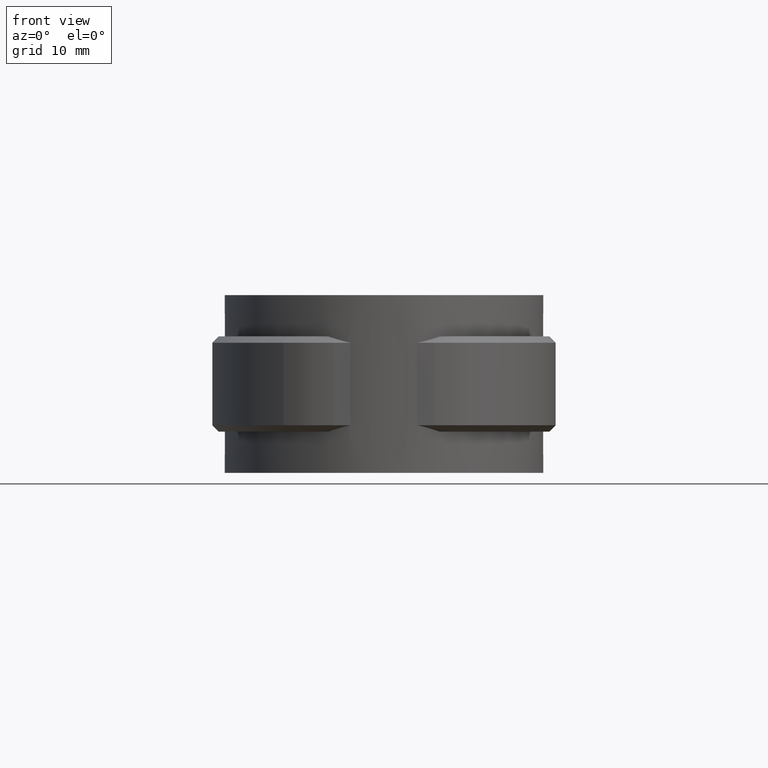
[diagram: clean part render]
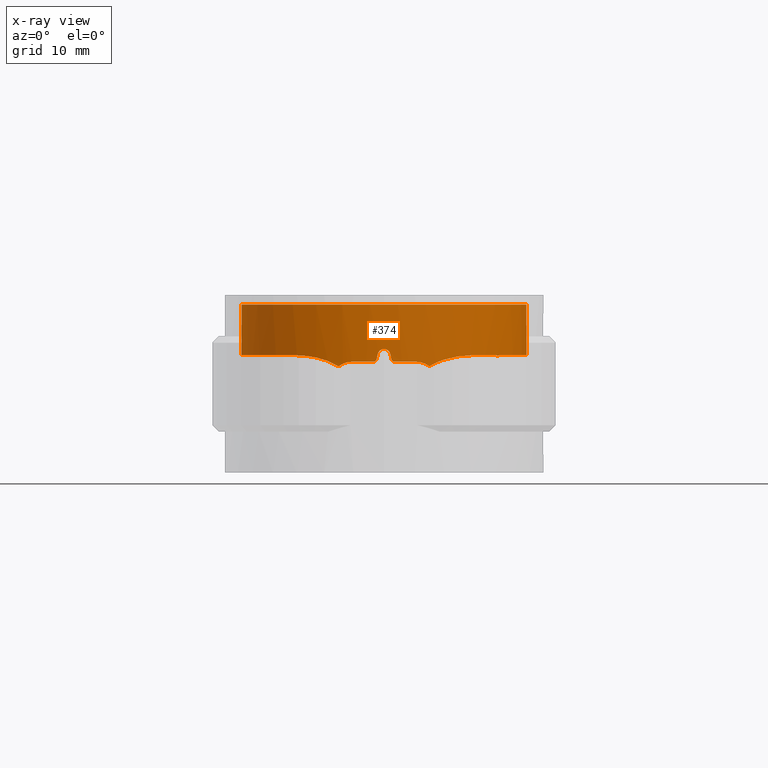
[diagram: x-ray — body ghosted, one internal face saturated and labeled with its STEP entity id]
A machine part, front view, then the same camera in x-ray: the body is ghosted and one INTERNAL B-rep face — a face not visible from any outside direction — is saturated and labeled: STEP entity #374.
In plain terms, the highlighted cylindrical surface (partial cylindrical patch) has radius 22.5 mm, axis along (0, 0, 1).
Its self-contained STEP definition (entity closure, byte-faithful):
#374 = ADVANCED_FACE( '', ( #730 ), #731, .F. );
#730 = FACE_OUTER_BOUND( '', #1662, .T. );
#731 = CYLINDRICAL_SURFACE( '', #1663, 22.5000000000000 );
#1662 = EDGE_LOOP( '', ( #3152, #3153, #3154, #3155, #3156, #3157, #3158, #3159, #3160, #3161, #3162, #3163, #3164, #3165, #3166, #3167 ) );
#1663 = AXIS2_PLACEMENT_3D( '', #3168, #3169, #3170 );
#3152 = ORIENTED_EDGE( '', *, *, #6408, .T. );
#3153 = ORIENTED_EDGE( '', *, *, #6379, .T. );
#3154 = ORIENTED_EDGE( '', *, *, #6383, .T. );
#3155 = ORIENTED_EDGE( '', *, *, #6412, .T. );
#3156 = ORIENTED_EDGE( '', *, *, #6413, .T. );
#3157 = ORIENTED_EDGE( '', *, *, #6414, .T. );
#3158 = ORIENTED_EDGE( '', *, *, #6415, .T. );
#3159 = ORIENTED_EDGE( '', *, *, #6416, .T. );
#3160 = ORIENTED_EDGE( '', *, *, #6417, .T. );
#3161 = ORIENTED_EDGE( '', *, *, #6418, .T. );
#3162 = ORIENTED_EDGE( '', *, *, #6409, .T. );
#3163 = ORIENTED_EDGE( '', *, *, #6401, .T. );
#3164 = ORIENTED_EDGE( '', *, *, #6419, .F. );
#3165 = ORIENTED_EDGE( '', *, *, #6372, .T. );
#3166 = ORIENTED_EDGE( '', *, *, #6420, .T. );
#3167 = ORIENTED_EDGE( '', *, *, #6397, .T. );
#3168 = CARTESIAN_POINT( '', ( 0.000000000000000, 0.000000000000000, 0.000000000000000 ) );
#3169 = DIRECTION( '', ( 0.000000000000000, 0.000000000000000, 1.00000000000000 ) );
#3170 = DIRECTION( '', ( 1.00000000000000, -6.12303176911189E-017, 0.000000000000000 ) );
#6372 = EDGE_CURVE( '', #7320, #7318, #7321, .T. );
#6379 = EDGE_CURVE( '', #7333, #7331, #7334, .T. );
#6383 = EDGE_CURVE( '', #7331, #7338, #7340, .T. );
#6397 = EDGE_CURVE( '', #7365, #7363, #7366, .T. );
#6401 = EDGE_CURVE( '', #7372, #7373, #7374, .T. );
#6408 = EDGE_CURVE( '', #7363, #7333, #7385, .T. );
#6409 = EDGE_CURVE( '', #7386, #7372, #7387, .T. );
#6412 = EDGE_CURVE( '', #7338, #7391, #7392, .T. );
#6413 = EDGE_CURVE( '', #7391, #7393, #7394, .T. );
#6414 = EDGE_CURVE( '', #7393, #7395, #7396, .T. );
#6415 = EDGE_CURVE( '', #7395, #7397, #7398, .T. );
#6416 = EDGE_CURVE( '', #7397, #7399, #7400, .T. );
#6417 = EDGE_CURVE( '', #7399, #7401, #7402, .T. );
#6418 = EDGE_CURVE( '', #7401, #7386, #7403, .T. );
#6419 = EDGE_CURVE( '', #7320, #7373, #7404, .T. );
#6420 = EDGE_CURVE( '', #7318, #7365, #7405, .T. );
#7318 = VERTEX_POINT( '', #9002 );
#7320 = VERTEX_POINT( '', #9004 );
#7321 = CIRCLE( '', #9005, 22.5000000000000 );
#7331 = VERTEX_POINT( '', #9045 );
#7333 = VERTEX_POINT( '', #9048 );
#7334 = B_SPLINE_CURVE_WITH_KNOTS( '', 3, ( #9049, #9050, #9051, #9052, #9053, #9054, #9055, #9056, #9057, #9058 ), .UNSPECIFIED., .F., .F., ( 4, 2, 2, 2, 4 ), ( 0.00881734214132488, 0.00940934226123539, 0.0100013423811459, 0.0105933425010564, 0.0111853426209669 ), .UNSPECIFIED. );
#7338 = VERTEX_POINT( '', #9088 );
#7340 = CIRCLE( '', #9091, 22.5000000000000 );
#7363 = VERTEX_POINT( '', #9356 );
#7365 = VERTEX_POINT( '', #9364 );
#7366 = B_SPLINE_CURVE_WITH_KNOTS( '', 3, ( #9365, #9366, #9367, #9368, #9369, #9370, #9371, #9372, #9373, #9374, #9375, #9376, #9377, #9378, #9379, #9380, #9381, #9382, #9383, #9384, #9385, #9386, #9387, #9388, #9389, #9390, #9391, #9392, #9393, #9394, #9395, #9396, #9397, #9398, #9399, #9400, #9401, #9402, #9403, #9404, #9405, #9406, #9407, #9408, #9409, #9410 ), .UNSPECIFIED., .F., .F., ( 4, 2, 2, 2, 2, 2, 2, 2, 2, 2, 2, 2, 2, 2, 2, 2, 2, 2, 2, 2, 2, 2, 4 ), ( 9.34177181294034E-018, 0.00310221661590013, 0.00620443323180025, 0.00775554153975031, 0.00930664984770037, 0.0124088664636005, 0.0139599747715506, 0.0155110830795006, 0.0186132996954007, 0.0217155163113009, 0.0232666246192509, 0.0248177329272010, 0.0279199495431011, 0.0294710578510512, 0.0310221661590012, 0.0341243827749013, 0.0372265993908015, 0.0387777076987515, 0.0403288160067016, 0.0434310326226017, 0.0449821409305518, 0.0465332492385018, 0.0496354658544020 ), .UNSPECIFIED. );
#7372 = VERTEX_POINT( '', #9446 );
#7373 = VERTEX_POINT( '', #9447 );
#7374 = B_SPLINE_CURVE_WITH_KNOTS( '', 3, ( #9448, #9449, #9450, #9451, #9452, #9453, #9454, #9455, #9456, #9457, #9458, #9459, #9460, #9461, #9462, #9463, #9464, #9465, #9466, #9467, #9468, #9469, #9470, #9471, #9472, #9473, #9474, #9475, #9476, #9477, #9478, #9479, #9480, #9481, #9482, #9483, #9484, #9485, #9486, #9487, #9488, #9489, #9490, #9491, #9492, #9493 ), .UNSPECIFIED., .F., .F., ( 4, 2, 2, 2, 2, 2, 2, 2, 2, 2, 2, 2, 2, 2, 2, 2, 2, 2, 2, 2, 2, 2, 4 ), ( 9.81307786677359E-018, 0.00310221631902395, 0.00620443263804790, 0.00775554079755987, 0.00930664895707184, 0.0124088652760958, 0.0139599734356078, 0.0155110815951197, 0.0186132979141437, 0.0217155142331676, 0.0232666223926796, 0.0248177305521916, 0.0279199468712155, 0.0294710550307275, 0.0310221631902394, 0.0341243795092634, 0.0372265958282873, 0.0387777039877993, 0.0403288121473113, 0.0434310284663352, 0.0449821366258472, 0.0465332447853591, 0.0496354611043831 ), .UNSPECIFIED. );
#7385 = B_SPLINE_CURVE_WITH_KNOTS( '', 3, ( #9594, #9595, #9596, #9597, #9598, #9599, #9600, #9601, #9602, #9603 ), .UNSPECIFIED., .F., .F., ( 4, 2, 2, 2, 4 ), ( 1.73472347597681E-018, 0.00194074299128403, 0.00388148598256807, 0.00582222897385210, 0.00776297196513613 ), .UNSPECIFIED. );
#7386 = VERTEX_POINT( '', #9604 );
#7387 = B_SPLINE_CURVE_WITH_KNOTS( '', 3, ( #9605, #9606, #9607, #9608, #9609, #9610, #9611, #9612, #9613, #9614 ), .UNSPECIFIED., .F., .F., ( 4, 2, 2, 2, 4 ), ( 0.000125817398426364, 0.00205374639228973, 0.00398167538615310, 0.00590960438001647, 0.00783753337387984 ), .UNSPECIFIED. );
#7391 = VERTEX_POINT( '', #9648 );
#7392 = B_SPLINE_CURVE_WITH_KNOTS( '', 3, ( #9649, #9650, #9651, #9652, #9653, #9654 ), .UNSPECIFIED., .F., .F., ( 4, 2, 4 ), ( 8.20849171219253E-018, 0.000336171757046730, 0.000672343514093452 ), .UNSPECIFIED. );
#7393 = VERTEX_POINT( '', #9655 );
#7394 = ELLIPSE( '', #9656, 102.500052287620, 22.5000000000000 );
#7395 = VERTEX_POINT( '', #9657 );
#7396 = B_SPLINE_CURVE_WITH_KNOTS( '', 3, ( #9658, #9659, #9660, #9661, #9662, #9663, #9664, #9665, #9666, #9667 ), .UNSPECIFIED., .F., .F., ( 4, 2, 2, 2, 4 ), ( 0.000000000000000, 0.000671640201386741, 0.00134328040277348, 0.00201492060416022, 0.00268656080554696 ), .UNSPECIFIED. );
#7397 = VERTEX_POINT( '', #9668 );
#7398 = ELLIPSE( '', #9669, 102.500104575276, 22.5000000000000 );
#7399 = VERTEX_POINT( '', #9670 );
#7400 = B_SPLINE_CURVE_WITH_KNOTS( '', 3, ( #9671, #9672, #9673, #9674, #9675, #9676 ), .UNSPECIFIED., .F., .F., ( 4, 2, 4 ), ( 4.33680868994202E-019, 0.000336179392193412, 0.000672358784386824 ), .UNSPECIFIED. );
#7401 = VERTEX_POINT( '', #9677 );
#7402 = CIRCLE( '', #9678, 22.5000000000000 );
#7403 = B_SPLINE_CURVE_WITH_KNOTS( '', 3, ( #9679, #9680, #9681, #9682, #9683, #9684 ), .UNSPECIFIED., .F., .F., ( 4, 2, 4 ), ( 2.60208521396521E-018, 0.00118659643506709, 0.00237319287013418 ), .UNSPECIFIED. );
#7404 = LINE( '', #9685, #9686 );
#7405 = LINE( '', #9687, #9688 );
#9002 = CARTESIAN_POINT( '', ( 5.96938775510204, 21.6936951630938, 0.000000000000000 ) );
#9004 = CARTESIAN_POINT( '', ( -5.96938775510204, 21.6936951630937, 0.000000000000000 ) );
#9005 = AXIS2_PLACEMENT_3D( '', #12699, #12700, #12701 );
#9045 = CARTESIAN_POINT( '', ( 5.00000000000000, -21.9374109684803, -9.00000000000000 ) );
#9048 = CARTESIAN_POINT( '', ( 7.14327262210691, -21.3359709468835, -9.73298311040085 ) );
#9049 = CARTESIAN_POINT( '', ( 7.14327262210691, -21.3359709468835, -9.73298311040086 ) );
#9050 = CARTESIAN_POINT( '', ( 6.99215887659031, -21.3865637548631, -9.61593360672520 ) );
#9051 = CARTESIAN_POINT( '', ( 6.83209769415344, -21.4383736176516, -9.51161563615157 ) );
#9052 = CARTESIAN_POINT( '', ( 6.49347178922259, -21.5433573612622, -9.32879122702203 ) );
#9053 = CARTESIAN_POINT( '', ( 6.31667071375172, -21.5959452745779, -9.25149589521894 ) );
#9054 = CARTESIAN_POINT( '', ( 5.95575769446516, -21.6982518073082, -9.12762280924841 ) );
#9055 = CARTESIAN_POINT( '', ( 5.77053819296456, -21.7483203548861, -9.08042813749268 ) );
#9056 = CARTESIAN_POINT( '', ( 5.39012748592850, -21.8457106769419, -9.01646711306007 ) );
#9057 = CARTESIAN_POINT( '', ( 5.19526159222400, -21.8929067212598, -8.99999999999996 ) );
#9058 = CARTESIAN_POINT( '', ( 5.00000000000000, -21.9374109684803, -8.99999999999996 ) );
#9088 = CARTESIAN_POINT( '', ( 1.64999999999995, -22.4394184416620, -9.00000000000000 ) );
#9091 = AXIS2_PLACEMENT_3D( '', #12709, #12710, #12711 );
#9356 = CARTESIAN_POINT( '', ( 13.7117062044655, -17.8392576348464, -7.99527260252385 ) );
#9364 = CARTESIAN_POINT( '', ( 5.96938775510203, 21.6936951630937, -7.99706180512242 ) );
#9365 = CARTESIAN_POINT( '', ( 5.96938775510203, 21.6936951630938, -7.99706180512244 ) );
#9366 = CARTESIAN_POINT( '', ( 6.98075585043438, 21.4154000972330, -7.99884206986779 ) );
#9367 = CARTESIAN_POINT( '', ( 7.96077685677586, 21.0700332084098, -8.00117174957457 ) );
#9368 = CARTESIAN_POINT( '', ( 9.86067696135207, 20.2506127667962, -8.00367823539348 ) );
#9369 = CARTESIAN_POINT( '', ( 10.7805486496828, 19.7765433689410, -8.00386285188496 ) );
#9370 = CARTESIAN_POINT( '', ( 12.1145013404169, 18.9673227282076, -8.00237042611906 ) );
#9371 = CARTESIAN_POINT( '', ( 12.5525446094514, 18.6804143156261, -8.00159845720753 ) );
#9372 = CARTESIAN_POINT( '', ( 13.4080644599689, 18.0761738930846, -7.99977813730590 ) );
#9373 = CARTESIAN_POINT( '', ( 13.8228890724027, 17.7608346577226, -7.99873834117114 ) );
#9374 = CARTESIAN_POINT( '', ( 15.0295599431552, 16.7761845514034, -7.99590660183703 ) );
#9375 = CARTESIAN_POINT( '', ( 15.7837780892772, 16.0684198019212, -7.99477903313715 ) );
#9376 = CARTESIAN_POINT( '', ( 16.8404188555885, 14.9304465503853, -7.99584977716436 ) );
#9377 = CARTESIAN_POINT( '', ( 17.1801405347536, 14.5383560561204, -7.99648704406690 ) );
#9378 = CARTESIAN_POINT( '', ( 17.8341673548127, 13.7282009152310, -7.99784461522722 ) );
#9379 = CARTESIAN_POINT( '', ( 18.1495836651245, 13.3084970490499, -7.99856651128180 ) );
#9380 = CARTESIAN_POINT( '', ( 19.0476491003084, 12.0221041186313, -8.00031961751484 ) );
#9381 = CARTESIAN_POINT( '', ( 19.5805544712932, 11.1319967358706, -8.00084857551026 ) );
#9382 = CARTESIAN_POINT( '', ( 20.5191448390250, 9.28892673056612, -7.99998800040116 ) );
#9383 = CARTESIAN_POINT( '', ( 20.9248235542925, 8.33596100379307, -7.99860038736865 ) );
#9384 = CARTESIAN_POINT( '', ( 21.4356297800931, 6.85823574904989, -7.99657280253231 ) );
#9385 = CARTESIAN_POINT( '', ( 21.5900200812487, 6.35561073448841, -7.99592560935238 ) );
#9386 = CARTESIAN_POINT( '', ( 21.8616563019193, 5.34703082596470, -7.99520168089425 ) );
#9387 = CARTESIAN_POINT( '', ( 21.9792656429569, 4.84051713788752, -7.99519766970569 ) );
#9388 = CARTESIAN_POINT( '', ( 22.2786737448792, 3.31445223719137, -7.99629152030742 ) );
#9389 = CARTESIAN_POINT( '', ( 22.4073009638362, 2.28840726987893, -7.99809908567388 ) );
#9390 = CARTESIAN_POINT( '', ( 22.4939162965826, 0.736352987044656, -7.99994064501333 ) );
#9391 = CARTESIAN_POINT( '', ( 22.5050049826860, 0.216829505148817, -8.00042762660577 ) );
#9392 = CARTESIAN_POINT( '', ( 22.4908627658155, -0.826653708805097, -8.00095660626207 ) );
#9393 = CARTESIAN_POINT( '', ( 22.4653966278085, -1.35204722464080, -8.00099612026925 ) );
#9394 = CARTESIAN_POINT( '', ( 22.3352131646499, -2.91145363337366, -8.00041773283653 ) );
#9395 = CARTESIAN_POINT( '', ( 22.1772745186765, -3.93545839902458, -7.99903789634234 ) );
#9396 = CARTESIAN_POINT( '', ( 21.7228024784732, -5.95308242580535, -7.99620736581978 ) );
#9397 = CARTESIAN_POINT( '', ( 21.4262723457426, -6.94670244266306, -7.99481595815936 ) );
#9398 = CARTESIAN_POINT( '', ( 20.8742398455908, -8.41362384671185, -7.99570317523644 ) );
#9399 = CARTESIAN_POINT( '', ( 20.6720257053310, -8.89880896754328, -7.99639753743606 ) );
#9400 = CARTESIAN_POINT( '', ( 20.2379711487000, -9.84611454265476, -7.99795913403040 ) );
#9401 = CARTESIAN_POINT( '', ( 20.0054474394648, -10.3101983100751, -7.99882696641999 ) );
#9402 = CARTESIAN_POINT( '', ( 19.2622400637873, -11.6742697206325, -8.00105659541909 ) );
#9403 = CARTESIAN_POINT( '', ( 18.7061341701137, -12.5462096884944, -8.00195375509523 ) );
#9404 = CARTESIAN_POINT( '', ( 17.7804674699081, -13.7976151865469, -8.00154110344581 ) );
#9405 = CARTESIAN_POINT( '', ( 17.4566074550424, -14.2053001162130, -8.00113304400664 ) );
#9406 = CARTESIAN_POINT( '', ( 16.7775101201251, -15.0012949241131, -7.99991310746938 ) );
#9407 = CARTESIAN_POINT( '', ( 16.4229958730320, -15.3885740334930, -7.99910221180665 ) );
#9408 = CARTESIAN_POINT( '', ( 15.3249521516951, -16.5072062587204, -7.99661312430511 ) );
#9409 = CARTESIAN_POINT( '', ( 14.5433832852783, -17.2000095213585, -7.99478010994990 ) );
#9410 = CARTESIAN_POINT( '', ( 13.7117062044653, -17.8392576348462, -7.99527260252372 ) );
#9446 = CARTESIAN_POINT( '', ( -13.7117062044655, -17.8392576348464, -7.99527260252385 ) );
#9447 = CARTESIAN_POINT( '', ( -5.96938775510206, 21.6936951630938, -7.99706180512244 ) );
#9448 = CARTESIAN_POINT( '', ( -13.7117062044655, -17.8392576348464, -7.99527260252390 ) );
#9449 = CARTESIAN_POINT( '', ( -14.5433804127241, -17.2000117292770, -7.99478011165113 ) );
#9450 = CARTESIAN_POINT( '', ( -15.3207209108286, -16.5104747735151, -7.99660419402953 ) );
#9451 = CARTESIAN_POINT( '', ( -16.7711592020991, -15.0349088953749, -7.99989079026461 ) );
#9452 = CARTESIAN_POINT( '', ( -17.4442441345035, -14.2488680798247, -8.00136343441244 ) );
#9453 = CARTESIAN_POINT( '', ( -18.3743930356678, -12.9962361595927, -8.00181894641419 ) );
#9454 = CARTESIAN_POINT( '', ( -18.6718468618381, -12.5652851231883, -8.00169979607512 ) );
#9455 = CARTESIAN_POINT( '', ( -19.2362319096804, -11.6829635527953, -8.00095581804544 ) );
#9456 = CARTESIAN_POINT( '', ( -19.5014580993852, -11.2344399875099, -8.00033556248663 ) );
#9457 = CARTESIAN_POINT( '', ( -20.2475532164671, -9.86735162475107, -7.99810724867380 ) );
#9458 = CARTESIAN_POINT( '', ( -20.6790679259405, -8.92736869282568, -7.99605181430981 ) );
#9459 = CARTESIAN_POINT( '', ( -21.2283795662887, -7.47488070175045, -7.99511744497127 ) );
#9460 = CARTESIAN_POINT( '', ( -21.3950988426493, -6.98360725375852, -7.99527844761145 ) );
#9461 = CARTESIAN_POINT( '', ( -21.6952006701347, -5.98659274078912, -7.99617036034505 ) );
#9462 = CARTESIAN_POINT( '', ( -21.8289938922316, -5.47891482154123, -7.99687298759176 ) );
#9463 = CARTESIAN_POINT( '', ( -22.1754600657687, -3.94878446444681, -7.99901840758696 ) );
#9464 = CARTESIAN_POINT( '', ( -22.3332293932058, -2.92341094463887, -8.00040114645379 ) );
#9465 = CARTESIAN_POINT( '', ( -22.5072356945685, -0.862443082137184, -8.00118962085165 ) );
#9466 = CARTESIAN_POINT( '', ( -22.5234656457115, 0.173151767629297, -8.00059581030478 ) );
#9467 = CARTESIAN_POINT( '', ( -22.4391064606146, 1.73439407466918, -7.99876261799482 ) );
#9468 = CARTESIAN_POINT( '', ( -22.3924903362133, 2.25812606751292, -7.99801201243187 ) );
#9469 = CARTESIAN_POINT( '', ( -22.2636010939312, 3.29466585930832, -7.99660201374966 ) );
#9470 = CARTESIAN_POINT( '', ( -22.1814539450357, 3.80812644910593, -7.99594345184428 ) );
#9471 = CARTESIAN_POINT( '', ( -21.8830778101088, 5.33439876923424, -7.99483234437223 ) );
#9472 = CARTESIAN_POINT( '', ( -21.6151555633698, 6.33316649196145, -7.99585755088089 ) );
#9473 = CARTESIAN_POINT( '', ( -21.1099030023078, 7.80323536708027, -7.99786698184264 ) );
#9474 = CARTESIAN_POINT( '', ( -20.9241968412140, 8.28856146271296, -7.99857689898198 ) );
#9475 = CARTESIAN_POINT( '', ( -20.5174748707897, 9.24962104615927, -7.99973729810894 ) );
#9476 = CARTESIAN_POINT( '', ( -20.2956999747689, 9.72659454776967, -8.00018652379472 ) );
#9477 = CARTESIAN_POINT( '', ( -19.5868901118593, 11.1216928385967, -8.00085508583561 ) );
#9478 = CARTESIAN_POINT( '', ( -19.0543412733394, 12.0104712315914, -8.00032623285349 ) );
#9479 = CARTESIAN_POINT( '', ( -17.8723508134009, 13.7076043482623, -7.99803162103247 ) );
#9480 = CARTESIAN_POINT( '', ( -17.2229119481480, 14.5159609683284, -7.99626604401378 ) );
#9481 = CARTESIAN_POINT( '', ( -16.1583083778176, 15.6662702986152, -7.99514497354396 ) );
#9482 = CARTESIAN_POINT( '', ( -15.7880101037063, 16.0393324384631, -7.99508652942377 ) );
#9483 = CARTESIAN_POINT( '', ( -15.0286773574488, 16.7529192976023, -7.99597893742106 ) );
#9484 = CARTESIAN_POINT( '', ( -14.6382694692557, 17.0950046111277, -7.99682637004786 ) );
#9485 = CARTESIAN_POINT( '', ( -13.4354121092221, 18.0779469047638, -7.99964469068109 ) );
#9486 = CARTESIAN_POINT( '', ( -12.5914772613519, 18.6756934728286, -8.00180745434244 ) );
#9487 = CARTESIAN_POINT( '', ( -11.2621430291676, 19.4854648640754, -8.00333784758651 ) );
#9488 = CARTESIAN_POINT( '', ( -10.8084227984482, 19.7408634557295, -8.00358338863216 ) );
#9489 = CARTESIAN_POINT( '', ( -9.87923194932910, 20.2218809574957, -8.00345154356913 ) );
#9490 = CARTESIAN_POINT( '', ( -9.40481739064604, 20.4468191575700, -8.00307210983594 ) );
#9491 = CARTESIAN_POINT( '', ( -7.96592284268606, 21.0686043325002, -8.00118777354151 ) );
#9492 = CARTESIAN_POINT( '', ( -6.98075618890948, 21.4154000040958, -7.99884207046359 ) );
#9493 = CARTESIAN_POINT( '', ( -5.96938775510206, 21.6936951630938, -7.99706180512244 ) );
#9594 = CARTESIAN_POINT( '', ( 13.7117062044654, -17.8392576348464, -7.99527260252386 ) );
#9595 = CARTESIAN_POINT( '', ( 13.1971550426915, -18.2347547178432, -8.00551442203989 ) );
#9596 = CARTESIAN_POINT( '', ( 12.6683162963906, -18.6058772647636, -8.04166712451962 ) );
#9597 = CARTESIAN_POINT( '', ( 11.5831384528451, -19.3001505216686, -8.17197429164943 ) );
#9598 = CARTESIAN_POINT( '', ( 11.0263511985932, -19.6232377653303, -8.26629937468362 ) );
#9599 = CARTESIAN_POINT( '', ( 9.90396039933316, -20.2129525195565, -8.52717949936097 ) );
#9600 = CARTESIAN_POINT( '', ( 9.33340109467985, -20.4818313983357, -8.69477633151503 ) );
#9601 = CARTESIAN_POINT( '', ( 8.21652597332661, -20.9548680347472, -9.12604134829094 ) );
#9602 = CARTESIAN_POINT( '', ( 7.66683825445094, -21.1606814296306, -9.38762569061232 ) );
#9603 = CARTESIAN_POINT( '', ( 7.14327262210685, -21.3359709468835, -9.73298311040076 ) );
#9604 = CARTESIAN_POINT( '', ( -7.14327262210697, -21.3359709468835, -9.73298311040083 ) );
#9605 = CARTESIAN_POINT( '', ( -7.14327262210692, -21.3359709468835, -9.73298311040075 ) );
#9606 = CARTESIAN_POINT( '', ( -7.66667298768692, -21.1607367608623, -9.38773470484032 ) );
#9607 = CARTESIAN_POINT( '', ( -8.21652101193676, -20.9548826440573, -9.12601820945216 ) );
#9608 = CARTESIAN_POINT( '', ( -9.33419270527726, -20.4814836060906, -8.69449573489161 ) );
#9609 = CARTESIAN_POINT( '', ( -9.90486920913656, -20.2124929431922, -8.52694723168258 ) );
#9610 = CARTESIAN_POINT( '', ( -11.0264404480156, -19.6231729359720, -8.26629967966190 ) );
#9611 = CARTESIAN_POINT( '', ( -11.5828184058399, -19.3003493063086, -8.17201780467817 ) );
#9612 = CARTESIAN_POINT( '', ( -12.6683403128946, -18.6058678723912, -8.04165915994960 ) );
#9613 = CARTESIAN_POINT( '', ( -13.1972204364101, -18.2347044545713, -8.00551312041873 ) );
#9614 = CARTESIAN_POINT( '', ( -13.7117062044654, -17.8392576348464, -7.99527260252383 ) );
#9648 = CARTESIAN_POINT( '', ( 1.16219499999999, -22.4699644588498, -8.60975599999999 ) );
#9649 = CARTESIAN_POINT( '', ( 1.64999999999995, -22.4394184416620, -8.99999999999995 ) );
#9650 = CARTESIAN_POINT( '', ( 1.53663857312741, -22.4477540567238, -9.00000000048649 ) );
#9651 = CARTESIAN_POINT( '', ( 1.42653750796350, -22.4549077652499, -8.96146594490951 ) );
#9652 = CARTESIAN_POINT( '', ( 1.24917792905720, -22.4654723188510, -8.81973114727543 ) );
#9653 = CARTESIAN_POINT( '', ( 1.18714631626365, -22.4686739229855, -8.72065074117205 ) );
#9654 = CARTESIAN_POINT( '', ( 1.16219499999999, -22.4699644588498, -8.60975599999999 ) );
#9655 = CARTESIAN_POINT( '', ( 0.975609757981813, -22.4788386176895, -7.78048781325256 ) );
#9656 = AXIS2_PLACEMENT_3D( '', #12712, #12713, #12714 );
#9657 = CARTESIAN_POINT( '', ( -0.975610000000027, -22.4788386071857, -7.78048800000004 ) );
#9658 = CARTESIAN_POINT( '', ( 0.975609757981815, -22.4788386176895, -7.78048781325255 ) );
#9659 = CARTESIAN_POINT( '', ( 0.925759449235975, -22.4810021835427, -7.55893097562737 ) );
#9660 = CARTESIAN_POINT( '', ( 0.802000628317951, -22.4864014670564, -7.36098155732460 ) );
#9661 = CARTESIAN_POINT( '', ( 0.447420897622094, -22.4962501427644, -7.07730605249319 ) );
#9662 = CARTESIAN_POINT( '', ( 0.227104418399291, -22.5000000108343, -6.99999977550522 ) );
#9663 = CARTESIAN_POINT( '', ( -0.227106565175073, -22.4999999891657, -7.00000021762863 ) );
#9664 = CARTESIAN_POINT( '', ( -0.447458947039428, -22.4962492274986, -7.07732972456105 ) );
#9665 = CARTESIAN_POINT( '', ( -0.801998479497323, -22.4864013851462, -7.36098628756926 ) );
#9666 = CARTESIAN_POINT( '', ( -0.925759729873598, -22.4810021719004, -7.55893113598761 ) );
#9667 = CARTESIAN_POINT( '', ( -0.975610000000027, -22.4788386071857, -7.78048800000004 ) );
#9668 = CARTESIAN_POINT( '', ( -1.16219512100914, -22.4699644525910, -8.60975609337373 ) );
#9669 = AXIS2_PLACEMENT_3D( '', #12715, #12716, #12717 );
#9670 = CARTESIAN_POINT( '', ( -1.65000000000003, -22.4394184416620, -9.00000000000000 ) );
#9671 = CARTESIAN_POINT( '', ( -1.16219512100916, -22.4699644525910, -8.60975609337372 ) );
#9672 = CARTESIAN_POINT( '', ( -1.18714642767576, -22.4686739170883, -8.72065079411459 ) );
#9673 = CARTESIAN_POINT( '', ( -1.24917004909896, -22.4654727743059, -8.81972347787829 ) );
#9674 = CARTESIAN_POINT( '', ( -1.42653836187879, -22.4549077283059, -8.96146792752489 ) );
#9675 = CARTESIAN_POINT( '', ( -1.53663860698352, -22.4477540542343, -8.99999999999994 ) );
#9676 = CARTESIAN_POINT( '', ( -1.65000000000003, -22.4394184416620, -8.99999999999994 ) );
#9677 = CARTESIAN_POINT( '', ( -5.00000000000005, -21.9374109684803, -9.00000000000000 ) );
#9678 = AXIS2_PLACEMENT_3D( '', #12718, #12719, #12720 );
#9679 = CARTESIAN_POINT( '', ( -5.00000000000005, -21.9374109684803, -8.99999999999997 ) );
#9680 = CARTESIAN_POINT( '', ( -5.39131316220604, -21.8482224213978, -8.99999999999997 ) );
#9681 = CARTESIAN_POINT( '', ( -5.76938726424929, -21.7510594632201, -9.06380533853586 ) );
#9682 = CARTESIAN_POINT( '', ( -6.50063316469609, -21.5438201263256, -9.31448738522700 ) );
#9683 = CARTESIAN_POINT( '', ( -6.83813122967414, -21.4381321356039, -9.49662705679985 ) );
#9684 = CARTESIAN_POINT( '', ( -7.14327262210697, -21.3359709468835, -9.73298311040081 ) );
#9685 = CARTESIAN_POINT( '', ( -5.96938775510204, 21.6936951630937, 0.000000000000000 ) );
#9686 = VECTOR( '', #12721, 1000.00000000000 );
#9687 = CARTESIAN_POINT( '', ( 5.96938775510204, 21.6936951630938, 0.000000000000000 ) );
#9688 = VECTOR( '', #12722, 1000.00000000000 );
#12699 = CARTESIAN_POINT( '', ( 0.000000000000000, 0.000000000000000, 0.000000000000000 ) );
#12700 = DIRECTION( '', ( 0.000000000000000, 0.000000000000000, 1.00000000000000 ) );
#12701 = DIRECTION( '', ( 1.00000000000000, -6.12303176911189E-017, 0.000000000000000 ) );
#12709 = CARTESIAN_POINT( '', ( 0.000000000000000, 0.000000000000000, -9.00000000000000 ) );
#12710 = DIRECTION( '', ( 6.12303176911189E-017, 0.000000000000000, -1.00000000000000 ) );
#12711 = DIRECTION( '', ( -1.00000000000000, 0.000000000000000, -6.12303176911189E-017 ) );
#12712 = CARTESIAN_POINT( '', ( 0.000000000000000, 0.000000000000000, -3.44444212055029 ) );
#12713 = DIRECTION( '', ( -0.975609781292647, 0.000000000000000, -0.219512083143762 ) );
#12714 = DIRECTION( '', ( 0.219512083143762, 0.000000000000000, -0.975609781292647 ) );
#12715 = CARTESIAN_POINT( '', ( 0.000000000000000, 0.000000000000000, -3.44443890776446 ) );
#12716 = DIRECTION( '', ( 0.975609806487711, 0.000000000000000, -0.219511971165610 ) );
#12717 = DIRECTION( '', ( -0.219511971165610, 0.000000000000000, -0.975609806487711 ) );
#12718 = CARTESIAN_POINT( '', ( 0.000000000000000, 0.000000000000000, -9.00000000000000 ) );
#12719 = DIRECTION( '', ( 6.12303176911189E-017, 0.000000000000000, -1.00000000000000 ) );
#12720 = DIRECTION( '', ( -1.00000000000000, 0.000000000000000, -6.12303176911189E-017 ) );
#12721 = DIRECTION( '', ( 0.000000000000000, 0.000000000000000, -1.00000000000000 ) );
#12722 = DIRECTION( '', ( 0.000000000000000, 0.000000000000000, -1.00000000000000 ) );